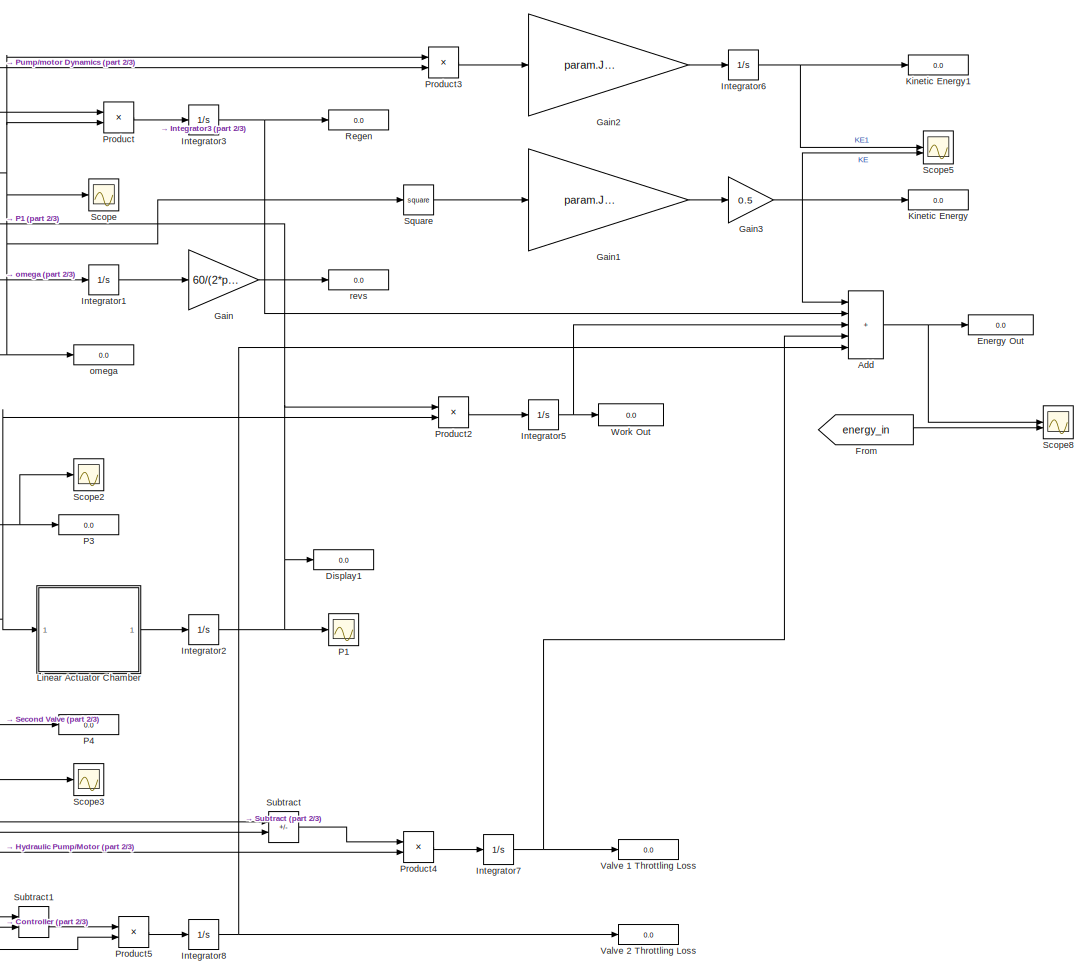
[diagram: root canvas - part 1/3, right side, full height]
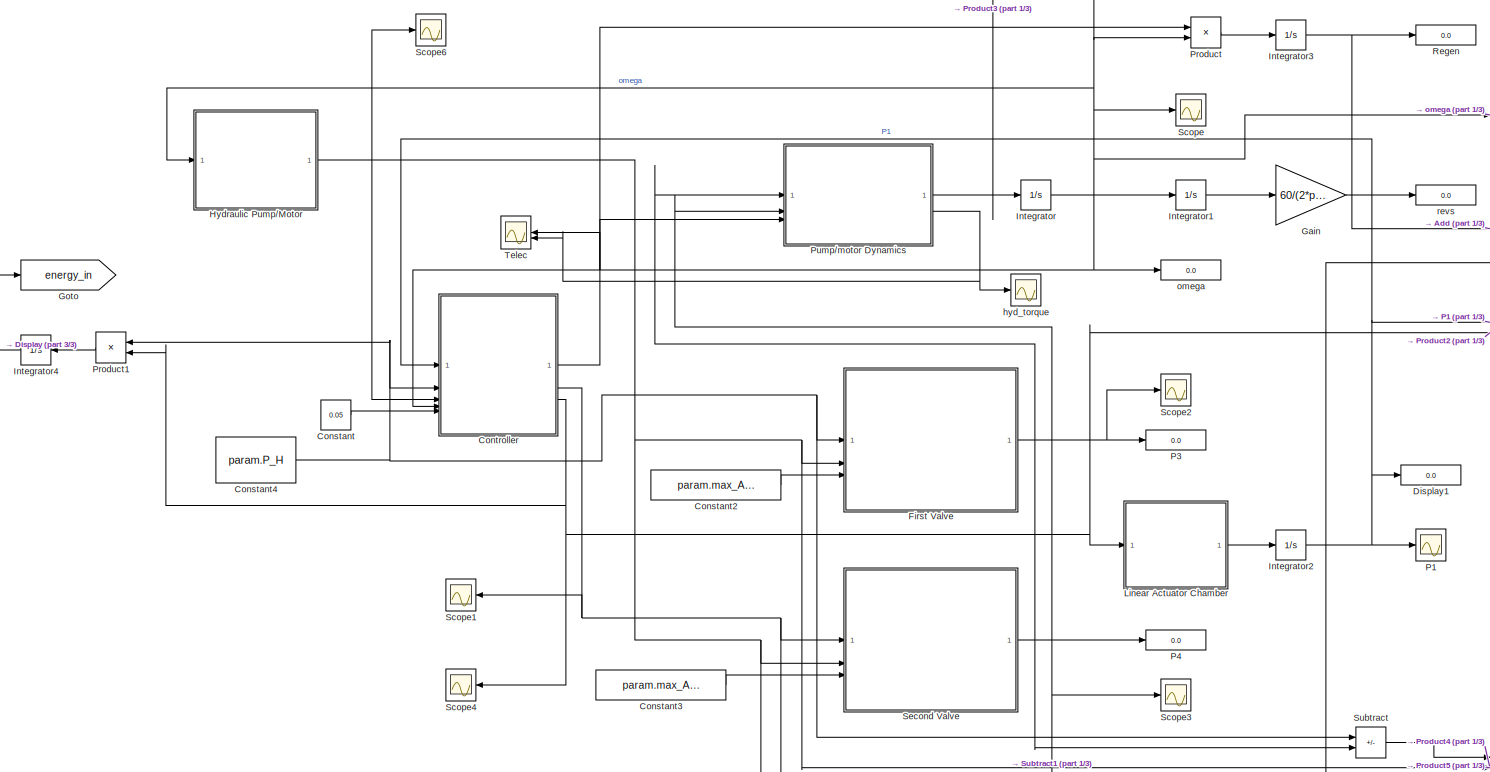
[diagram: root canvas - part 2/3, center side, full height]
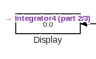
[diagram: root canvas - part 3/3, middle left region]
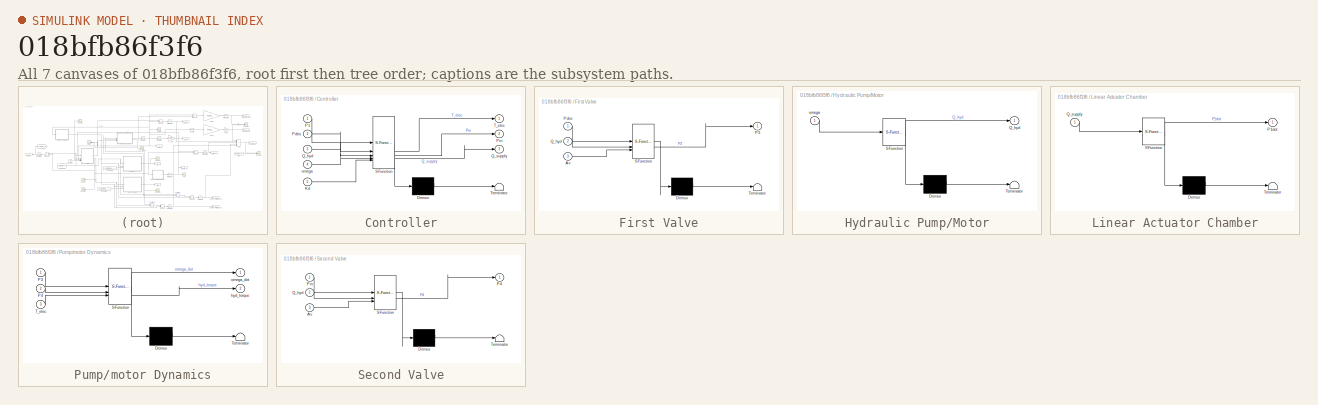
[diagram: thumbnail index - all 7 canvases of the model, root first then tree order]
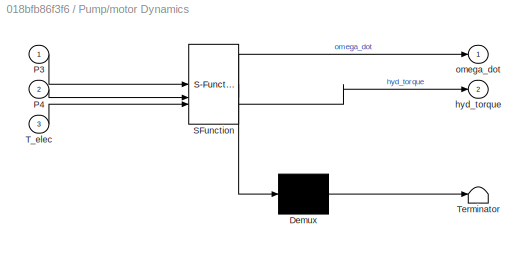
MODEL slx_018bfb86f3f6
KIND model
CONFIG AbsTol = auto
CONFIG EnableMultiTasking = off
CONFIG FixedStep = 1e-6
CONFIG InitFcn = %% Parameters\n\nparam = struct();\n\n% Volume of chambers \nparam.V1_0 = 1e-3;\nparam.V2_0 = 20e-6;\n\n% Pressure rails\nparam.P_H = 20e6;\nparam.P_M = 10e6;\n\n% Valve things\nparam.max_Avt = 0.5*0.25*pi*(20e-3)^2;\nparam.Cd = 0.6;\n\n% Fluid properties\nparam.beta = 1.8e9;\nparam.rho = 870;\n\n% Electric motor stuff\nparam.Kt = 70.5e-3;\nparam.Ke = 70.5e-3;\nparam.J_elec = 3000e-7;\n\n% Pump things\nparam.J_hyd = 3000e-...<+69ch>
CONFIG MaxStep = auto
CONFIG MinStep = auto
CONFIG RelTol = 1e-3
CONFIG SampleTimeConstraint = Unconstrained
CONFIG SolverName = ode4
CONFIG StartTime = 0.0
CONFIG StopTime = 0.25
BLOCK [Sum] Add
  IconShape = rectangular
  Inputs = +++++
BLOCK [Constant] Constant
  Value = 0.05
BLOCK [Constant] Constant2
  Value = param.max_Avt
BLOCK [Constant] Constant3
  Value = param.max_Avt
BLOCK [Constant] Constant4
  Value = param.P_H
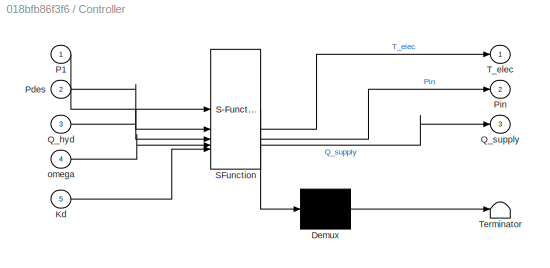
BLOCK [SubSystem] Controller
  ErrorFcn = Stateflow.Translate.translate
  LibrarySourceBlock = simulink/User-Defined\nFunctions/MATLAB Function
  PermitHierarchicalResolution = ExplicitOnly
  SFBlockType = MATLAB Function
  TreatAsAtomicUnit = on
BLOCK [Demux] Controller/ Demux 
  Outputs = 1
BLOCK [S-Function] Controller/ SFunction 
  EnableBusSupport = on
  FunctionName = sf_sfun
  PortCounts = [5 4]
  SFcnIsStateOwnerBlock = off
  SFunctionDeploymentMode = off
  Tag = Stateflow S-Function 6
BLOCK [Terminator] Controller/ Terminator 
BLOCK [Inport] Controller/Kd
  Port = 5
BLOCK [Inport] Controller/P1
BLOCK [Inport] Controller/Pdes
  Port = 2
BLOCK [Outport] Controller/Pin
  Port = 2
BLOCK [Inport] Controller/Q_hyd
  Port = 3
BLOCK [Outport] Controller/Q_supply
  Port = 3
BLOCK [Outport] Controller/T_elec
BLOCK [Inport] Controller/omega
  Port = 4
BLOCK [Display] Display
  Decimation = 1
  NameLocation = top
BLOCK [Display] Display1
  Decimation = 1
BLOCK [Display] Energy Out
  Decimation = 1
BLOCK [SubSystem] First Valve
  ErrorFcn = Stateflow.Translate.translate
  PermitHierarchicalResolution = ExplicitOnly
  SFBlockType = MATLAB Function
  TreatAsAtomicUnit = on
BLOCK [Demux] First Valve/ Demux 
  Outputs = 1
BLOCK [S-Function] First Valve/ SFunction 
  EnableBusSupport = on
  FunctionName = sf_sfun
  Parameters = param
  PortCounts = [3 2]
  SFcnIsStateOwnerBlock = off
  SFunctionDeploymentMode = off
  Tag = Stateflow S-Function 3
BLOCK [Terminator] First Valve/ Terminator 
BLOCK [Inport] First Valve/Av
  Port = 3
BLOCK [Outport] First Valve/P3
BLOCK [Inport] First Valve/Pdes
BLOCK [Inport] First Valve/Q_hyd
  Port = 2
BLOCK [From] From
  GotoTag = energy_in
  NameLocation = top
BLOCK [Gain] Gain
  Gain = 60/(2*pi)
BLOCK [Gain] Gain1
  Gain = param.J_elec+param.J_hyd
BLOCK [Gain] Gain2
  Gain = param.J_elec+param.J_hyd
BLOCK [Gain] Gain3
  Gain = 0.5
BLOCK [Goto] Goto
  GotoTag = energy_in
BLOCK [SubSystem] Hydraulic Pump//Motor
  ErrorFcn = Stateflow.Translate.translate
  PermitHierarchicalResolution = ExplicitOnly
  SFBlockType = MATLAB Function
  TreatAsAtomicUnit = on
BLOCK [Demux] Hydraulic Pump//Motor/ Demux 
  Outputs = 1
BLOCK [S-Function] Hydraulic Pump//Motor/ SFunction 
  EnableBusSupport = on
  FunctionName = sf_sfun
  Parameters = param
  PortCounts = [1 2]
  SFcnIsStateOwnerBlock = off
  SFunctionDeploymentMode = off
  Tag = Stateflow S-Function 2
BLOCK [Terminator] Hydraulic Pump//Motor/ Terminator 
BLOCK [Outport] Hydraulic Pump//Motor/Q_hyd
BLOCK [Inport] Hydraulic Pump//Motor/omega
BLOCK [Integrator] Integrator
BLOCK [Integrator] Integrator1
BLOCK [Integrator] Integrator2
  InitialCondition = param.P_M
BLOCK [Integrator] Integrator3
BLOCK [Integrator] Integrator4
  NameLocation = top
BLOCK [Integrator] Integrator5
BLOCK [Integrator] Integrator6
BLOCK [Integrator] Integrator7
BLOCK [Integrator] Integrator8
BLOCK [Display] Kinetic Energy
  Decimation = 1
BLOCK [Display] Kinetic Energy1
  Decimation = 1
BLOCK [SubSystem] Linear Actuator Chamber
  ErrorFcn = Stateflow.Translate.translate
  PermitHierarchicalResolution = ExplicitOnly
  SFBlockType = MATLAB Function
  TreatAsAtomicUnit = on
BLOCK [Demux] Linear Actuator Chamber/ Demux 
  Outputs = 1
BLOCK [S-Function] Linear Actuator Chamber/ SFunction 
  EnableBusSupport = on
  FunctionName = sf_sfun
  Parameters = param
  PortCounts = [1 2]
  SFcnIsStateOwnerBlock = off
  SFunctionDeploymentMode = off
  Tag = Stateflow S-Function 5
BLOCK [Terminator] Linear Actuator Chamber/ Terminator 
BLOCK [Outport] Linear Actuator Chamber/P1dot
BLOCK [Inport] Linear Actuator Chamber/Q_supply
BLOCK [Scope] P1
  Floating = off
  NumInputPorts = 1
  ScopeSpecificationString = Simulink.scopes.TimeScopeBlockCfg('CurrentConfiguration', extmgr.ConfigurationSet(extmgr.Configuration('Core','General UI',true),extmgr.Configuration('Core','Source UI',true),extmgr.Configuration('Sources','WiredSimulink',true,'DataLoggingVariableName','ScopeData1'),extmgr.Configuration('Visuals','Time Domain',true,'SerializedDisplays',{struct('MinYLimReal','8751246.6759','MaxYLimReal','21238779.9...<+1479ch>
BLOCK [Display] P3
  Decimation = 1
BLOCK [Display] P4
  Decimation = 1
BLOCK [Product] Product
BLOCK [Product] Product1
  NameLocation = top
BLOCK [Product] Product2
BLOCK [Product] Product3
BLOCK [Product] Product4
BLOCK [Product] Product5
BLOCK [SubSystem] Pump//motor Dynamics
  ErrorFcn = Stateflow.Translate.translate
  PermitHierarchicalResolution = ExplicitOnly
  SFBlockType = MATLAB Function
  TreatAsAtomicUnit = on
BLOCK [Demux] Pump//motor Dynamics/ Demux 
  Outputs = 1
BLOCK [S-Function] Pump//motor Dynamics/ SFunction 
  EnableBusSupport = on
  FunctionName = sf_sfun
  Parameters = param
  PortCounts = [3 3]
  SFcnIsStateOwnerBlock = off
  SFunctionDeploymentMode = off
  Tag = Stateflow S-Function 1
BLOCK [Terminator] Pump//motor Dynamics/ Terminator 
BLOCK [Inport] Pump//motor Dynamics/P3
BLOCK [Inport] Pump//motor Dynamics/P4
  Port = 2
BLOCK [Inport] Pump//motor Dynamics/T_elec
  Port = 3
BLOCK [Outport] Pump//motor Dynamics/hyd_torque
  Port = 2
BLOCK [Outport] Pump//motor Dynamics/omega_dot
BLOCK [Display] Regen
  Decimation = 1
BLOCK [Scope] Scope
  Floating = off
  NumInputPorts = 1
  ScopeSpecificationString = Simulink.scopes.TimeScopeBlockCfg('CurrentConfiguration', extmgr.ConfigurationSet(extmgr.Configuration('Core','General UI',true),extmgr.Configuration('Core','Source UI',true),extmgr.Configuration('Sources','WiredSimulink',true),extmgr.Configuration('Visuals','Time Domain',true,'SerializedDisplays',{struct('MinYLimReal','-38.03478','MaxYLimReal','342.31302','YLabelReal','','MinYLimMag','0.00000','M...<+1363ch>
BLOCK [Scope] Scope1
  Floating = off
  NameLocation = top
  NumInputPorts = 1
  ScopeSpecificationString = Simulink.scopes.TimeScopeBlockCfg('CurrentConfiguration', extmgr.ConfigurationSet(extmgr.Configuration('Core','General UI',true),extmgr.Configuration('Core','Source UI',true),extmgr.Configuration('Sources','WiredSimulink',true,'DataLoggingVariableName','ScopeData4'),extmgr.Configuration('Visuals','Time Domain',true,'SerializedDisplays',{struct('MinYLimReal','8750000.00000','MaxYLimReal','21250000....<+1495ch>
BLOCK [Scope] Scope2
  Floating = off
  NumInputPorts = 1
  ScopeSpecificationString = Simulink.scopes.TimeScopeBlockCfg('CurrentConfiguration', extmgr.ConfigurationSet(extmgr.Configuration('Core','General UI',true),extmgr.Configuration('Core','Source UI',true),extmgr.Configuration('Sources','WiredSimulink',true,'DataLoggingVariableName','ScopeData1'),extmgr.Configuration('Visuals','Time Domain',true,'SerializedDisplays',{struct('MinYLimReal','-380.34798','MaxYLimReal','380.34798','...<+1401ch>
BLOCK [Scope] Scope3
  Floating = off
  NumInputPorts = 1
  ScopeSpecificationString = Simulink.scopes.TimeScopeBlockCfg('CurrentConfiguration', extmgr.ConfigurationSet(extmgr.Configuration('Core','General UI',true),extmgr.Configuration('Core','Source UI',true),extmgr.Configuration('Sources','WiredSimulink',true,'DataLoggingVariableName','ScopeData2'),extmgr.Configuration('Visuals','Time Domain',true,'SerializedDisplays',{struct('MinYLimReal','19999887.9226','MaxYLimReal','20000227....<+1464ch>
BLOCK [Scope] Scope4
  Floating = off
  NameLocation = top
  NumInputPorts = 1
  ScopeSpecificationString = Simulink.scopes.TimeScopeBlockCfg('CurrentConfiguration', extmgr.ConfigurationSet(extmgr.Configuration('Core','General UI',true),extmgr.Configuration('Core','Source UI',true),extmgr.Configuration('Sources','WiredSimulink',true,'DataLoggingVariableName','ScopeData5'),extmgr.Configuration('Visuals','Time Domain',true,'SerializedDisplays',{struct('MinYLimReal','8750000.00000','MaxYLimReal','21250000....<+1500ch>
BLOCK [Scope] Scope5
  Floating = off
  NumInputPorts = 2
  ScopeSpecificationString = Simulink.scopes.TimeScopeBlockCfg('CurrentConfiguration', extmgr.ConfigurationSet(extmgr.Configuration('Core','General UI',true),extmgr.Configuration('Core','Source UI',true),extmgr.Configuration('Sources','WiredSimulink',true,'DataLoggingVariableName','ScopeData6'),extmgr.Configuration('Visuals','Time Domain',true,'SerializedDisplays',{struct('MinYLimReal','-3.47195','MaxYLimReal','31.24752','YLa...<+1441ch>
BLOCK [Scope] Scope6
  Floating = off
  NumInputPorts = 1
  ScopeSpecificationString = Simulink.scopes.TimeScopeBlockCfg('CurrentConfiguration', extmgr.ConfigurationSet(extmgr.Configuration('Core','General UI',true),extmgr.Configuration('Core','Source UI',true),extmgr.Configuration('Sources','WiredSimulink',true,'DataLoggingVariableName','ScopeData7'),extmgr.Configuration('Visuals','Time Domain',true,'SerializedDisplays',{struct('MinYLimReal','-0.00001','MaxYLimReal','0.000086','YLa...<+1457ch>
BLOCK [Scope] Scope8
  Floating = off
  NumInputPorts = 2
  ScopeSpecificationString = Simulink.scopes.TimeScopeBlockCfg('CurrentConfiguration', extmgr.ConfigurationSet(extmgr.Configuration('Core','General UI',true),extmgr.Configuration('Core','Source UI',true),extmgr.Configuration('Sources','WiredSimulink',true,'DataLoggingVariableName','ScopeData10'),extmgr.Configuration('Visuals','Time Domain',true,'SerializedDisplays',{struct('MinYLimReal','-16.19033','MaxYLimReal','145.713','YL...<+1449ch>
BLOCK [SubSystem] Second Valve
  ErrorFcn = Stateflow.Translate.translate
  PermitHierarchicalResolution = ExplicitOnly
  SFBlockType = MATLAB Function
  TreatAsAtomicUnit = on
BLOCK [Demux] Second Valve/ Demux 
  Outputs = 1
BLOCK [S-Function] Second Valve/ SFunction 
  EnableBusSupport = on
  FunctionName = sf_sfun
  Parameters = param
  PortCounts = [3 2]
  SFcnIsStateOwnerBlock = off
  SFunctionDeploymentMode = off
  Tag = Stateflow S-Function 4
BLOCK [Terminator] Second Valve/ Terminator 
BLOCK [Inport] Second Valve/Av
  Port = 3
BLOCK [Outport] Second Valve/P4
BLOCK [Inport] Second Valve/Pin
BLOCK [Inport] Second Valve/Q_hyd
  Port = 2
BLOCK [Math] Square
  Operator = square
BLOCK [Sum] Subtract
  IconShape = rectangular
  Inputs = +-
BLOCK [Sum] Subtract1
  IconShape = rectangular
  Inputs = +-
BLOCK [Scope] Telec
  Floating = off
  NameLocation = top
  NumInputPorts = 2
  ScopeSpecificationString = Simulink.scopes.TimeScopeBlockCfg('CurrentConfiguration', extmgr.ConfigurationSet(extmgr.Configuration('Core','General UI',true),extmgr.Configuration('Core','Source UI',true),extmgr.Configuration('Sources','WiredSimulink',true,'DataLoggingVariableName','ScopeData3'),extmgr.Configuration('Visuals','Time Domain',true,'SerializedDisplays',{struct('MinYLimReal','-3.80354','MaxYLimReal','34.23037','YLa...<+1460ch>
BLOCK [Display] Valve 1 Throttling Loss
  Decimation = 1
BLOCK [Display] Valve 2 Throttling Loss
  Decimation = 1
BLOCK [Display] Work Out
  Decimation = 1
BLOCK [Scope] hyd_torque
  Floating = off
  NumInputPorts = 1
  ScopeSpecificationString = Simulink.scopes.TimeScopeBlockCfg('CurrentConfiguration', extmgr.ConfigurationSet(extmgr.Configuration('Core','General UI',true),extmgr.Configuration('Core','Source UI',true),extmgr.Configuration('Sources','WiredSimulink',true,'DataLoggingVariableName','ScopeData8'),extmgr.Configuration('Visuals','Time Domain',true,'SerializedDisplays',{struct('MinYLimReal','-0.31848','MaxYLimReal','2.86481','YLab...<+1461ch>
BLOCK [Display] omega
  Decimation = 1
BLOCK [Display] revs
  Decimation = 1
NET Add:1 -> Energy Out:1, Scope8:1
LINE Constant2:1 -> First Valve:3
LINE Constant3:1 -> Second Valve:3
NET Constant4:1 -> Controller:2, First Valve:1, Product1:1, Subtract:1
LINE Constant:1 -> Controller:5
NET Controller:1 -> Product:1, Pump//motor Dynamics:3, Telec:1
NET Controller:2 -> Scope1:1, Second Valve:1, Subtract1:2
NET Controller:3 -> Linear Actuator Chamber:1, Product1:2, Product2:2, Scope4:1
NET First Valve:1 -> P3:1, Pump//motor Dynamics:1, Scope2:1, Subtract:2
LINE From:1 -> Scope8:2
LINE Gain1:1 -> Gain3:1
LINE Gain2:1 -> Integrator6:1
NET Gain3:1 -> Add:1, Kinetic Energy:1, Scope5:2
LINE Gain:1 -> revs:1
NET Hydraulic Pump//Motor:1 -> Controller:3, First Valve:2, Product4:2, Product5:2, Scope6:1, Second Valve:2
LINE Integrator1:1 -> Gain:1
NET Integrator2:1 -> Controller:1, Display1:1, P1:1, Product2:1
NET Integrator3:1 -> Add:2, Regen:1
NET Integrator4:1 -> Display:1, Goto:1
NET Integrator5:1 -> Add:3, Work Out:1
NET Integrator6:1 -> Kinetic Energy1:1, Scope5:1
NET Integrator7:1 -> Add:4, Valve 1 Throttling Loss:1
NET Integrator8:1 -> Add:5, Valve 2 Throttling Loss:1
NET Integrator:1 -> Controller:4, Hydraulic Pump//Motor:1, Integrator1:1, Product3:1, Product:2, Scope:1, Square:1, omega:1
LINE Linear Actuator Chamber:1 -> Integrator2:1
LINE Product1:1 -> Integrator4:1
LINE Product2:1 -> Integrator5:1
LINE Product3:1 -> Gain2:1
LINE Product4:1 -> Integrator7:1
LINE Product5:1 -> Integrator8:1
LINE Product:1 -> Integrator3:1
NET Pump//motor Dynamics:1 -> Integrator:1, Product3:2
NET Pump//motor Dynamics:2 -> Telec:2, hyd_torque:1
NET Second Valve:1 -> P4:1, Pump//motor Dynamics:2, Scope3:1, Subtract1:1
LINE Square:1 -> Gain1:1
LINE Subtract1:1 -> Product5:1
LINE Subtract:1 -> Product4:1
note: NET lines group one-source signal fan-out (src -> all destinations, sorted); 1:1 wires keep LINE
CHART Pump//motor Dynamics states=1 transitions=1
  STATE_LABEL 'eML_blk_kernel()'
  STATE_LABEL 'SCRIPT:\nfunction [omega_dot, hyd_torque] = fcn(P3, P4, param, T_elec)\n\nhyd_torque = (param.hyd_D/(2*pi))*(P3-P4);\nomega_dot = (1/(param.J_elec+param.J_hyd))*(hyd_torque - T_elec);\n'
CHART Hydraulic Pump//Motor states=1 transitions=1
  STATE_LABEL 'eML_blk_kernel()'
  STATE_LABEL 'SCRIPT:\nfunction Q_hyd   = fcn(omega, param)\n\nQ_hyd = (param.hyd_D/(2*pi))*omega;\n'
CHART First Valve states=1 transitions=1
  STATE_LABEL 'eML_blk_kernel()'
  STATE_LABEL 'SCRIPT:\nfunction P3 = fcn(Pdes, Q_hyd, Av, param)\n\nK = param.Cd*Av*sqrt(2/param.rho);\n\nP3 = Pdes - (Q_hyd/K)^2;\n'
CHART Second Valve states=1 transitions=1
  STATE_LABEL 'eML_blk_kernel()'
  STATE_LABEL 'SCRIPT:\nfunction P4 = fcn(Pin, Q_hyd, Av, param)\n\nK = param.Cd*Av*sqrt(2/param.rho);\nP4 = Pin + (Q_hyd/K)^2;\n'
CHART Linear Actuator Chamber states=1 transitions=1
  STATE_LABEL 'eML_blk_kernel()'
  STATE_LABEL 'SCRIPT:\nfunction P1dot = fcn(Q_supply, param)\n\nP1dot = (param.beta/param.V1_0)*(Q_supply);\n'
CHART Controller states=1 transitions=1
  STATE_LABEL 'eML_blk_kernel()'
  STATE_LABEL 'SCRIPT:\nfunction [T_elec, Pin, Q_supply] = fcn(P1, Pdes, Q_hyd, omega, Kd)\n\nif abs(P1-Pdes)<1e4\n    T_elec = Kd*omega;\n    Pin = Pdes;\n    Q_supply = 0;\nelse\n    T_elec = 0;\n    Pin = P1;\n    Q_supply = Q_hyd;\nend\n\n'
CHART  states=0 transitions=0
CHART  states=0 transitions=0
CHART  states=0 transitions=0
CHART  states=0 transitions=0
CHART  states=0 transitions=0
CHART  states=0 transitions=0
